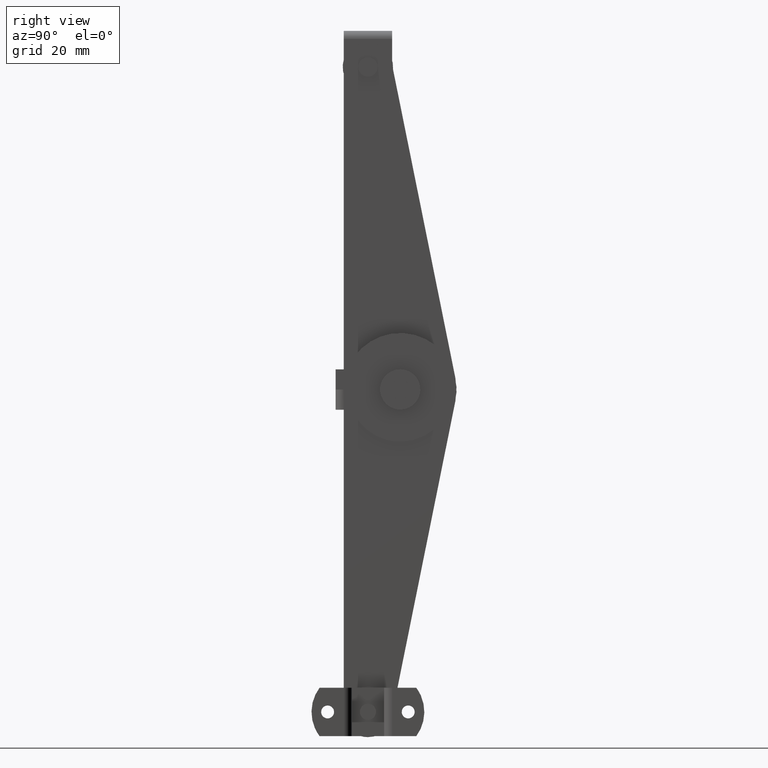
[diagram: clean part render]
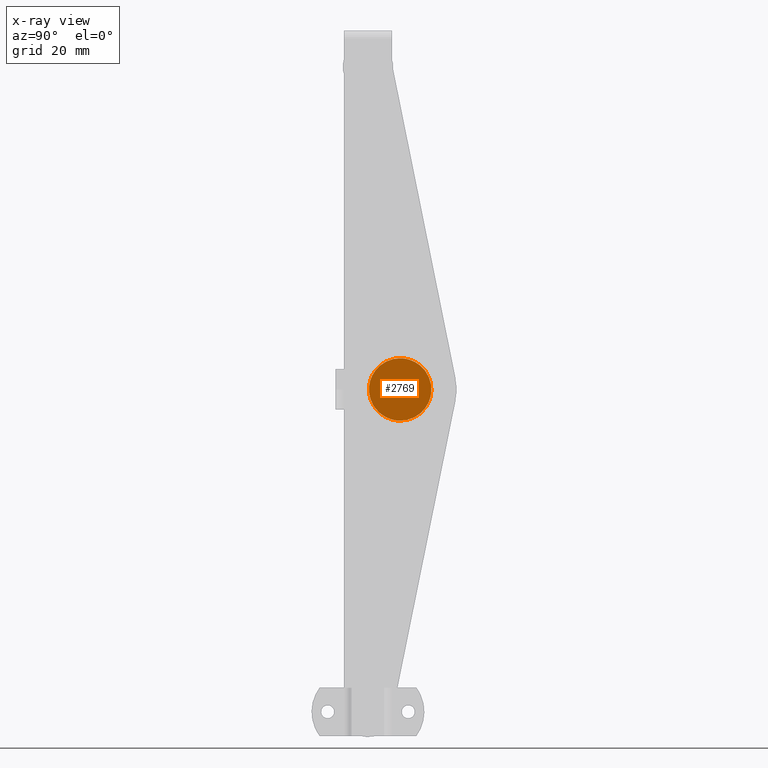
[diagram: x-ray — body ghosted, one internal face saturated and labeled with its STEP entity id]
A machine part, right view, then the same camera in x-ray: the body is ghosted and one INTERNAL B-rep face — a face not visible from any outside direction — is saturated and labeled: STEP entity #2769.
In plain terms, the highlighted face is a freeform B-spline surface patch.
Its self-contained STEP definition (entity closure, byte-faithful):
#2418=CARTESIAN_POINT('',(-9.500000316634893,9.497202197493667,-0.091572811577117));
#2419=VERTEX_POINT('',#2418);
#2425=CARTESIAN_POINT('',(-9.500000316634891,8.0,-1.500000000000000));
#2426=VERTEX_POINT('',#2425);
#2427=CARTESIAN_POINT('',(-9.500000316634891,8.0,-1.500000000000000));
#2428=CARTESIAN_POINT('',(-9.500000316634891,9.411059096062640,-1.500000000000000));
#2429=CARTESIAN_POINT('',(-9.500000316634893,9.497202197493667,-0.091572811577117));
#2437=(BOUNDED_CURVE()B_SPLINE_CURVE(2,(#2427,#2428,#2429),.UNSPECIFIED.,.F.,.U.)B_SPLINE_CURVE_WITH_KNOTS((3,3),(0.500000000000000,0.739332961717638),.UNSPECIFIED.)CURVE()GEOMETRIC_REPRESENTATION_ITEM()RATIONAL_B_SPLINE_CURVE((1.0,0.719603993897457,0.976072040549461))REPRESENTATION_ITEM(''));
#2438=EDGE_CURVE('',#2426,#2419,#2437,.T.);
#2440=CARTESIAN_POINT('',(-9.500000316634891,6.510485715749137,0.177051396528347));
#2441=VERTEX_POINT('',#2440);
#2442=CARTESIAN_POINT('',(-9.500000316634891,6.510485715749137,0.177051396528347));
#2443=CARTESIAN_POINT('',(-9.500000316634891,6.500000000000001,0.088836224491979));
#2444=CARTESIAN_POINT('',(-9.500000316634891,6.500000000000001,4.898425E-016));
#2445=CARTESIAN_POINT('',(-9.500000316634891,6.500000000000003,-1.500000000000000));
#2446=CARTESIAN_POINT('',(-9.500000316634891,8.0,-1.500000000000000));
#2454=(BOUNDED_CURVE()B_SPLINE_CURVE(2,(#2442,#2443,#2444,#2445,#2446),.UNSPECIFIED.,.F.,.U.)B_SPLINE_CURVE_WITH_KNOTS((3,2,3),(0.229562463407722,0.250000000000000,0.500000000000000),.UNSPECIFIED.)CURVE()GEOMETRIC_REPRESENTATION_ITEM()RATIONAL_B_SPLINE_CURVE((0.956026734375947,0.976055936491480,1.0,0.707106781186548,1.0))REPRESENTATION_ITEM(''));
#2455=EDGE_CURVE('',#2441,#2426,#2454,.T.);
#2499=CARTESIAN_POINT('',(-9.500000316634891,8.0,1.500000000000000));
#2500=VERTEX_POINT('',#2499);
#2501=CARTESIAN_POINT('',(-9.500000316634891,8.0,1.500000000000000));
#2502=CARTESIAN_POINT('',(-9.500000316634893,6.667738291315176,1.500000000000001));
#2503=CARTESIAN_POINT('',(-9.500000316634891,6.510485715749137,0.177051396528347));
#2511=(BOUNDED_CURVE()B_SPLINE_CURVE(2,(#2501,#2502,#2503),.UNSPECIFIED.,.F.,.U.)B_SPLINE_CURVE_WITH_KNOTS((3,3),(0.0,0.229562463407722),.UNSPECIFIED.)CURVE()GEOMETRIC_REPRESENTATION_ITEM()RATIONAL_B_SPLINE_CURVE((1.0,0.731050844695067,0.956026734375947))REPRESENTATION_ITEM(''));
#2512=EDGE_CURVE('',#2500,#2441,#2511,.T.);
#2514=CARTESIAN_POINT('',(-9.500000316634893,9.497202197493667,-0.091572811577117));
#2515=CARTESIAN_POINT('',(-9.500000316634893,9.500000000000002,-0.045829147229093));
#2516=CARTESIAN_POINT('',(-9.500000316634891,9.500000000000000,4.898425E-016));
#2517=CARTESIAN_POINT('',(-9.500000316634891,9.500000000000000,1.500000000000001));
#2518=CARTESIAN_POINT('',(-9.500000316634891,8.0,1.500000000000000));
#2526=(BOUNDED_CURVE()B_SPLINE_CURVE(2,(#2514,#2515,#2516,#2517,#2518),.UNSPECIFIED.,.F.,.U.)B_SPLINE_CURVE_WITH_KNOTS((3,2,3),(0.739332961717637,0.750000000000000,1.0),.UNSPECIFIED.)CURVE()GEOMETRIC_REPRESENTATION_ITEM()RATIONAL_B_SPLINE_CURVE((0.976072040549460,0.987502787289090,1.0,0.707106781186548,1.0))REPRESENTATION_ITEM(''));
#2527=EDGE_CURVE('',#2419,#2500,#2526,.T.);
#2589=CARTESIAN_POINT('',(-9.500000316634893,0.304192058861924,0.914763430277830));
#2590=VERTEX_POINT('',#2589);
#2596=CARTESIAN_POINT('',(-9.500000316634891,8.0,-7.749984000000099));
#2597=VERTEX_POINT('',#2596);
#2598=CARTESIAN_POINT('',(-9.500000316634893,0.304192058861924,0.914763430277830));
#2599=CARTESIAN_POINT('',(-9.500000316634891,0.250015999999901,0.458985979954581));
#2600=CARTESIAN_POINT('',(-9.500000316634891,0.250015999999901,0.0));
#2601=CARTESIAN_POINT('',(-9.500000316634891,0.250015999999900,-7.749984000000100));
#2602=CARTESIAN_POINT('',(-9.500000316634891,8.0,-7.749984000000099));
#2610=(BOUNDED_CURVE()B_SPLINE_CURVE(2,(#2598,#2599,#2600,#2601,#2602),.UNSPECIFIED.,.F.,.U.)B_SPLINE_CURVE_WITH_KNOTS((3,2,3),(0.229562473505292,0.250000000000000,0.500000000000000),.UNSPECIFIED.)CURVE()GEOMETRIC_REPRESENTATION_ITEM()RATIONAL_B_SPLINE_CURVE((0.956026754167596,0.976055948321519,1.0,0.707106781186548,1.0))REPRESENTATION_ITEM(''));
#2611=EDGE_CURVE('',#2590,#2597,#2610,.T.);
#2613=CARTESIAN_POINT('',(-9.500000316634889,15.735528717584019,-0.473125205088981));
#2614=VERTEX_POINT('',#2613);
#2615=CARTESIAN_POINT('',(-9.500000316634891,8.0,-7.749984000000099));
#2616=CARTESIAN_POINT('',(-9.500000316634891,15.290456966333682,-7.749984000000100));
#2617=CARTESIAN_POINT('',(-9.500000316634889,15.735528717584019,-0.473125205088981));
#2625=(BOUNDED_CURVE()B_SPLINE_CURVE(2,(#2615,#2616,#2617),.UNSPECIFIED.,.F.,.U.)B_SPLINE_CURVE_WITH_KNOTS((3,3),(0.500000000000000,0.739332962220979),.UNSPECIFIED.)CURVE()GEOMETRIC_REPRESENTATION_ITEM()RATIONAL_B_SPLINE_CURVE((1.0,0.719603993307756,0.976072041628219))REPRESENTATION_ITEM(''));
#2626=EDGE_CURVE('',#2597,#2614,#2625,.T.);
#2700=CARTESIAN_POINT('',(-9.500000316634891,8.0,7.749984000000099));
#2701=VERTEX_POINT('',#2700);
#2702=CARTESIAN_POINT('',(-9.500000316634889,15.735528717584019,-0.473125205088982));
#2703=CARTESIAN_POINT('',(-9.500000316634891,15.749984000000104,-0.236783427191639));
#2704=CARTESIAN_POINT('',(-9.500000316634891,15.749984000000101,0.0));
#2705=CARTESIAN_POINT('',(-9.500000316634891,15.749984000000104,7.749984000000100));
#2706=CARTESIAN_POINT('',(-9.500000316634891,8.0,7.749984000000099));
#2714=(BOUNDED_CURVE()B_SPLINE_CURVE(2,(#2702,#2703,#2704,#2705,#2706),.UNSPECIFIED.,.F.,.U.)B_SPLINE_CURVE_WITH_KNOTS((3,2,3),(0.739332962220980,0.750000000000000,1.0),.UNSPECIFIED.)CURVE()GEOMETRIC_REPRESENTATION_ITEM()RATIONAL_B_SPLINE_CURVE((0.976072041628220,0.987502787878793,1.0,0.707106781186548,1.0))REPRESENTATION_ITEM(''));
#2715=EDGE_CURVE('',#2614,#2701,#2714,.T.);
#2717=CARTESIAN_POINT('',(-9.500000316634891,8.0,7.749984000000099));
#2718=CARTESIAN_POINT('',(-9.500000316634891,1.116661635093814,7.749984000000100));
#2719=CARTESIAN_POINT('',(-9.500000316634893,0.304192058861925,0.914763430277830));
#2727=(BOUNDED_CURVE()B_SPLINE_CURVE(2,(#2717,#2718,#2719),.UNSPECIFIED.,.F.,.U.)B_SPLINE_CURVE_WITH_KNOTS((3,3),(0.0,0.229562473505292),.UNSPECIFIED.)CURVE()GEOMETRIC_REPRESENTATION_ITEM()RATIONAL_B_SPLINE_CURVE((1.0,0.731050832865028,0.956026754167596))REPRESENTATION_ITEM(''));
#2728=EDGE_CURVE('',#2701,#2590,#2727,.T.);
#2752=CARTESIAN_POINT('',(-9.500000316634871,-0.524066706537560,8.524207170678778));
#2753=CARTESIAN_POINT('',(-9.500000316634869,16.524018757680061,8.524207170678778));
#2754=CARTESIAN_POINT('',(-9.500000316634871,-0.524066706537560,-8.524206616356727));
#2755=CARTESIAN_POINT('',(-9.500000316634869,16.524018757680061,-8.524206616356727));
#2756=B_SPLINE_SURFACE_WITH_KNOTS('',1,1,((#2752,#2754),(#2753,#2755)),.UNSPECIFIED.,.F.,.F.,.U.,(2,2),(2,2),(0.0,17.048085464217621),(0.0,17.048413787035511),.UNSPECIFIED.);
#2757=ORIENTED_EDGE('',*,*,#2715,.F.);
#2758=ORIENTED_EDGE('',*,*,#2626,.F.);
#2759=ORIENTED_EDGE('',*,*,#2611,.F.);
#2760=ORIENTED_EDGE('',*,*,#2728,.F.);
#2761=EDGE_LOOP('',(#2757,#2758,#2759,#2760));
#2762=FACE_OUTER_BOUND('',#2761,.T.);
#2763=ORIENTED_EDGE('',*,*,#2438,.T.);
#2764=ORIENTED_EDGE('',*,*,#2527,.T.);
#2765=ORIENTED_EDGE('',*,*,#2512,.T.);
#2766=ORIENTED_EDGE('',*,*,#2455,.T.);
#2767=EDGE_LOOP('',(#2763,#2764,#2765,#2766));
#2768=FACE_BOUND('',#2767,.T.);
#2769=ADVANCED_FACE('',(#2762,#2768),#2756,.T.);